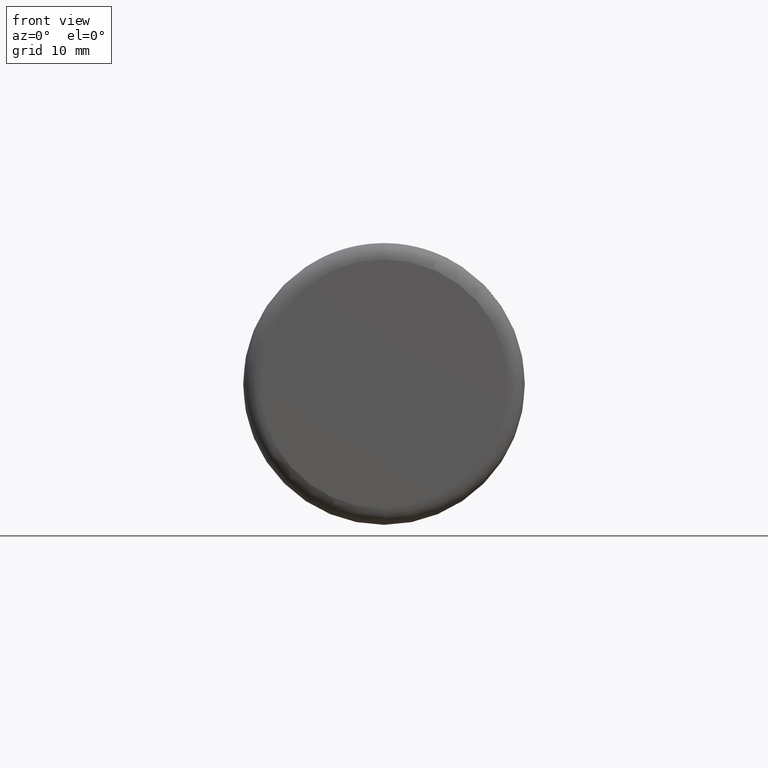
[diagram: clean part render]
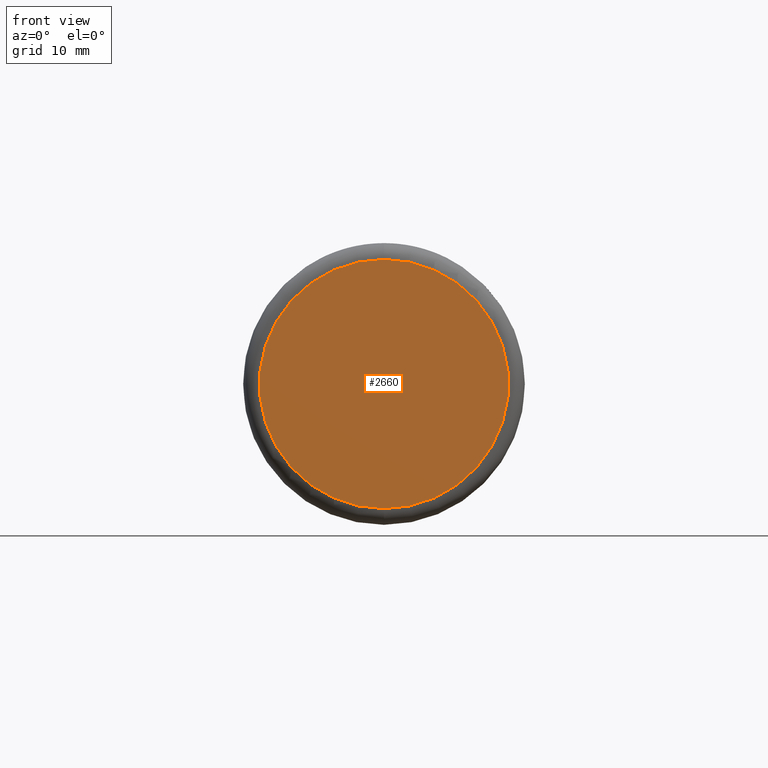
[diagram: same view with one face highlighted and labeled with its STEP entity id]
A machine part, front view. The second image highlights one B-rep face of the part: STEP entity #2660.
In plain terms, the highlighted planar face has unit normal (0, 1, 0).
Its self-contained STEP definition (entity closure, byte-faithful):
#352 = VERTEX_POINT ( 'NONE', #1563 ) ;
#455 = EDGE_LOOP ( 'NONE', ( #4212, #814 ) ) ;
#814 = ORIENTED_EDGE ( 'NONE', *, *, #2644, .T. ) ;
#1269 = PLANE ( 'NONE',  #2847 ) ;
#1365 = CARTESIAN_POINT ( 'NONE',  ( 0.0000000000000000000, 0.0000000000000000000, 0.0000000000000000000 ) ) ;
#1563 = CARTESIAN_POINT ( 'NONE',  ( 2.365919644208754400E-015, 0.0000000000000000000, -18.13839999999999700 ) ) ;
#1633 = DIRECTION ( 'NONE',  ( -0.0000000000000000000, -1.000000000000000000, -0.0000000000000000000 ) ) ;
#1655 = VERTEX_POINT ( 'NONE', #4749 ) ;
#2169 = AXIS2_PLACEMENT_3D ( 'NONE', #3093, #1633, #3497 ) ;
#2400 = DIRECTION ( 'NONE',  ( -0.0000000000000000000, -1.000000000000000000, -0.0000000000000000000 ) ) ;
#2452 = DIRECTION ( 'NONE',  ( 0.0000000000000000000, -0.0000000000000000000, 1.000000000000000000 ) ) ;
#2562 = AXIS2_PLACEMENT_3D ( 'NONE', #4603, #2400, #3160 ) ;
#2644 = EDGE_CURVE ( 'NONE', #352, #1655, #4673, .T. ) ;
#2660 = ADVANCED_FACE ( 'NONE', ( #3688 ), #1269, .F. ) ;
#2847 = AXIS2_PLACEMENT_3D ( 'NONE', #1365, #4693, #2452 ) ;
#3093 = CARTESIAN_POINT ( 'NONE',  ( 0.0000000000000000000, 0.0000000000000000000, 0.0000000000000000000 ) ) ;
#3160 = DIRECTION ( 'NONE',  ( 0.0000000000000000000, 0.0000000000000000000, 1.000000000000000000 ) ) ;
#3497 = DIRECTION ( 'NONE',  ( 0.0000000000000000000, 0.0000000000000000000, 1.000000000000000000 ) ) ;
#3688 = FACE_OUTER_BOUND ( 'NONE', #455, .T. ) ;
#4212 = ORIENTED_EDGE ( 'NONE', *, *, #4567, .T. ) ;
#4567 = EDGE_CURVE ( 'NONE', #1655, #352, #4611, .T. ) ;
#4603 = CARTESIAN_POINT ( 'NONE',  ( 0.0000000000000000000, 0.0000000000000000000, 0.0000000000000000000 ) ) ;
#4611 = CIRCLE ( 'NONE', #2562, 18.13839999999999700 ) ;
#4673 = CIRCLE ( 'NONE', #2169, 18.13839999999999700 ) ;
#4693 = DIRECTION ( 'NONE',  ( 0.0000000000000000000, 1.000000000000000000, 0.0000000000000000000 ) ) ;
#4749 = CARTESIAN_POINT ( 'NONE',  ( 0.0000000000000000000, 0.0000000000000000000, 18.13839999999999700 ) ) ;